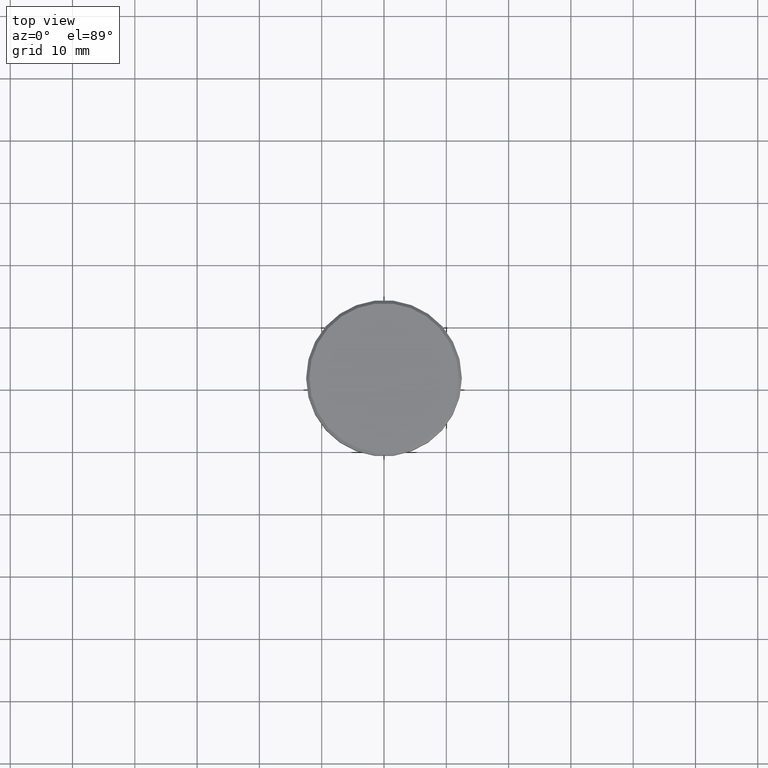
[diagram: clean part render]
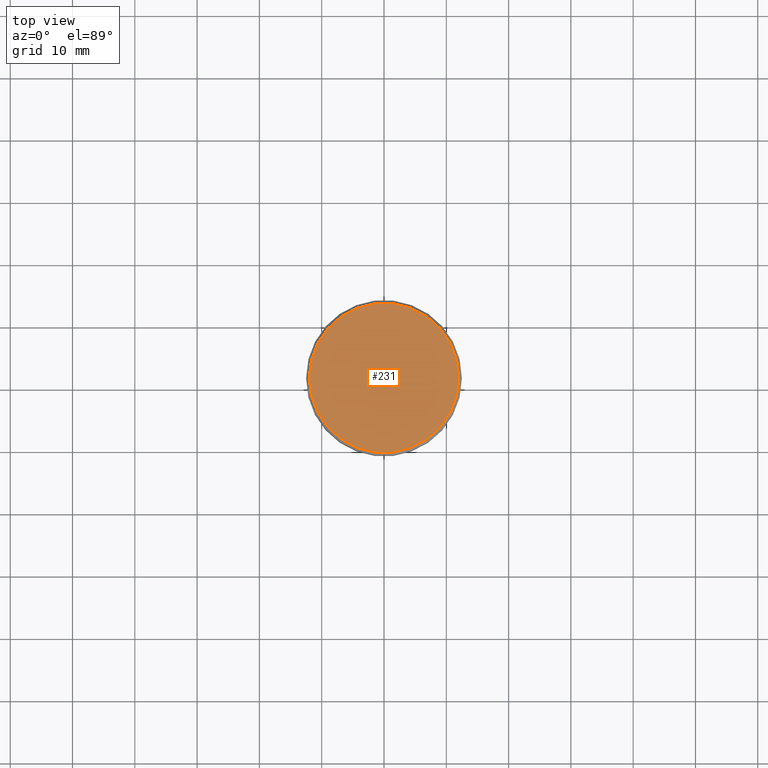
[diagram: same view with one face highlighted and labeled with its STEP entity id]
A machine part, top view. The second image highlights one B-rep face of the part: STEP entity #231.
In plain terms, the highlighted planar face has unit normal (0, -0, 1).
Its self-contained STEP definition (entity closure, byte-faithful):
#27 = DIRECTION ( 'NONE',  ( 1.000000000000000000, 0.000000000000000000, 0.000000000000000000 ) ) ;
#64 = PLANE ( 'NONE',  #1172 ) ;
#71 = AXIS2_PLACEMENT_3D ( 'NONE', #1136, #229, #411 ) ;
#120 = VERTEX_POINT ( 'NONE', #258 ) ;
#227 = FACE_OUTER_BOUND ( 'NONE', #1042, .T. ) ;
#229 = DIRECTION ( 'NONE',  ( -0.000000000000000000, -0.000000000000000000, 1.000000000000000000 ) ) ;
#231 = ADVANCED_FACE ( 'NONE', ( #227 ), #64, .T. ) ;
#258 = CARTESIAN_POINT ( 'NONE',  ( -12.00000000000001066, 0.000000000000000000, 0.000000000000000000 ) ) ;
#411 = DIRECTION ( 'NONE',  ( 1.000000000000000000, 0.000000000000000000, 0.000000000000000000 ) ) ;
#414 = CIRCLE ( 'NONE', #979, 12.00000000000001066 ) ;
#560 = ORIENTED_EDGE ( 'NONE', *, *, #820, .T. ) ;
#688 = DIRECTION ( 'NONE',  ( 0.000000000000000000, -0.000000000000000000, 1.000000000000000000 ) ) ;
#704 = VERTEX_POINT ( 'NONE', #1076 ) ;
#820 = EDGE_CURVE ( 'NONE', #120, #704, #414, .T. ) ;
#823 = ORIENTED_EDGE ( 'NONE', *, *, #825, .T. ) ;
#825 = EDGE_CURVE ( 'NONE', #704, #120, #1070, .T. ) ;
#959 = CARTESIAN_POINT ( 'NONE',  ( 0.000000000000000000, 0.000000000000000000, 0.000000000000000000 ) ) ;
#979 = AXIS2_PLACEMENT_3D ( 'NONE', #1113, #1039, #27 ) ;
#1038 = DIRECTION ( 'NONE',  ( 1.000000000000000000, 0.000000000000000000, 0.000000000000000000 ) ) ;
#1039 = DIRECTION ( 'NONE',  ( -0.000000000000000000, -0.000000000000000000, 1.000000000000000000 ) ) ;
#1042 = EDGE_LOOP ( 'NONE', ( #560, #823 ) ) ;
#1070 = CIRCLE ( 'NONE', #71, 12.00000000000001066 ) ;
#1076 = CARTESIAN_POINT ( 'NONE',  ( 12.00000000000001066, 1.500192328955508326E-15, 0.000000000000000000 ) ) ;
#1113 = CARTESIAN_POINT ( 'NONE',  ( 0.000000000000000000, 0.000000000000000000, 0.000000000000000000 ) ) ;
#1136 = CARTESIAN_POINT ( 'NONE',  ( 0.000000000000000000, 0.000000000000000000, 0.000000000000000000 ) ) ;
#1172 = AXIS2_PLACEMENT_3D ( 'NONE', #959, #688, #1038 ) ;